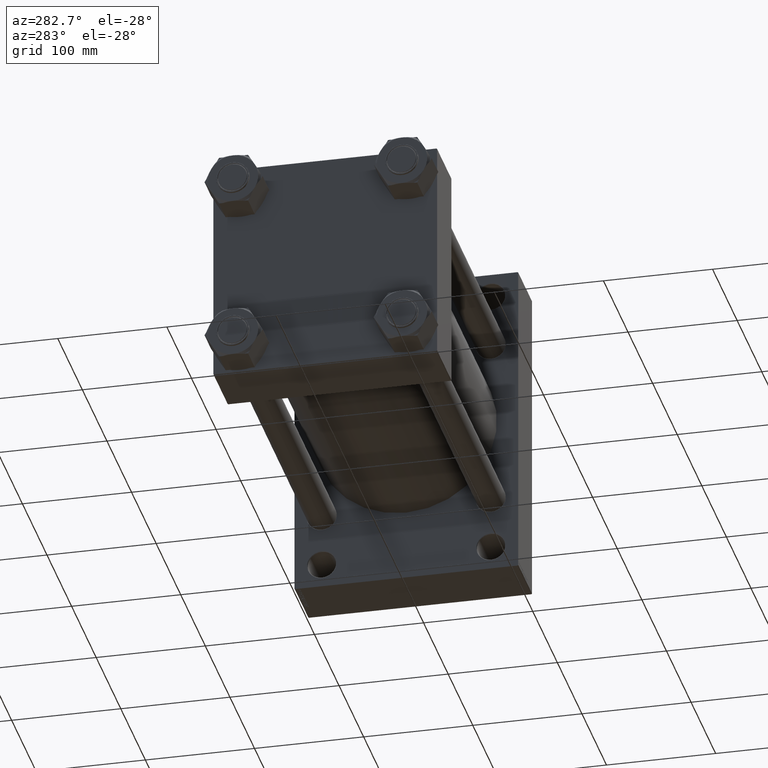
[diagram: clean part render]
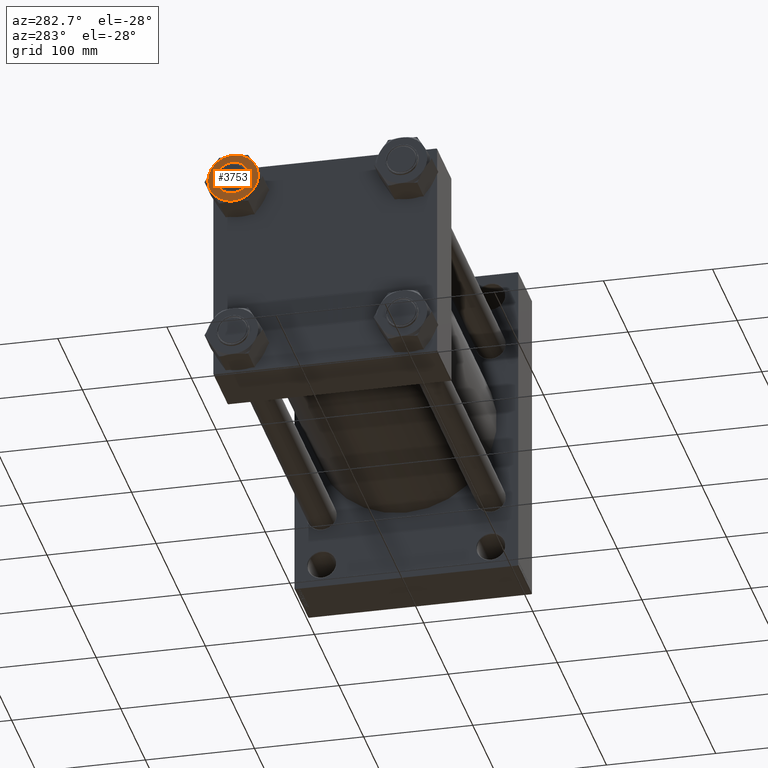
[diagram: same view with one face highlighted and labeled with its STEP entity id]
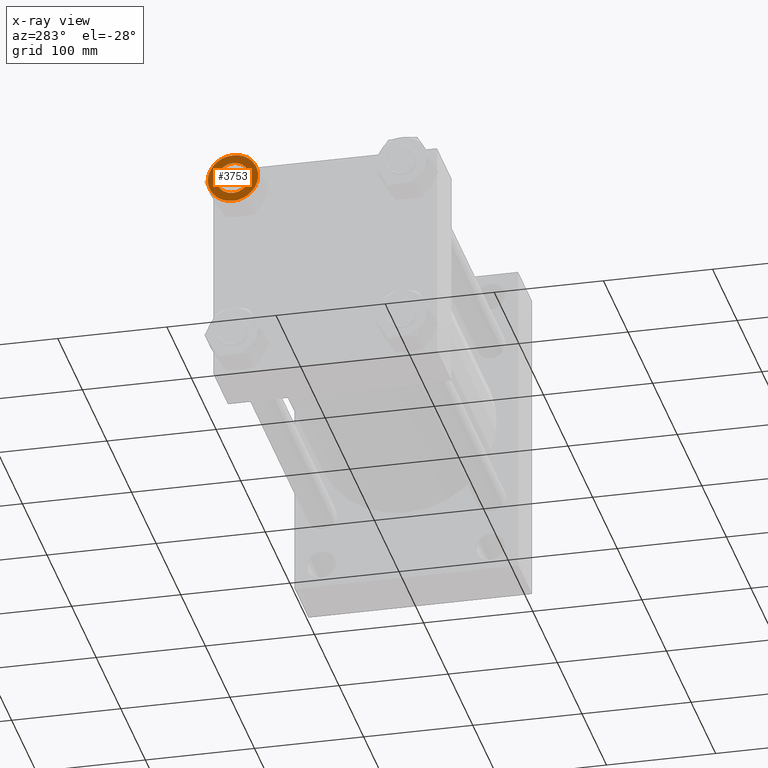
[diagram: x-ray of the same camera — body ghosted, the highlighted face saturated]
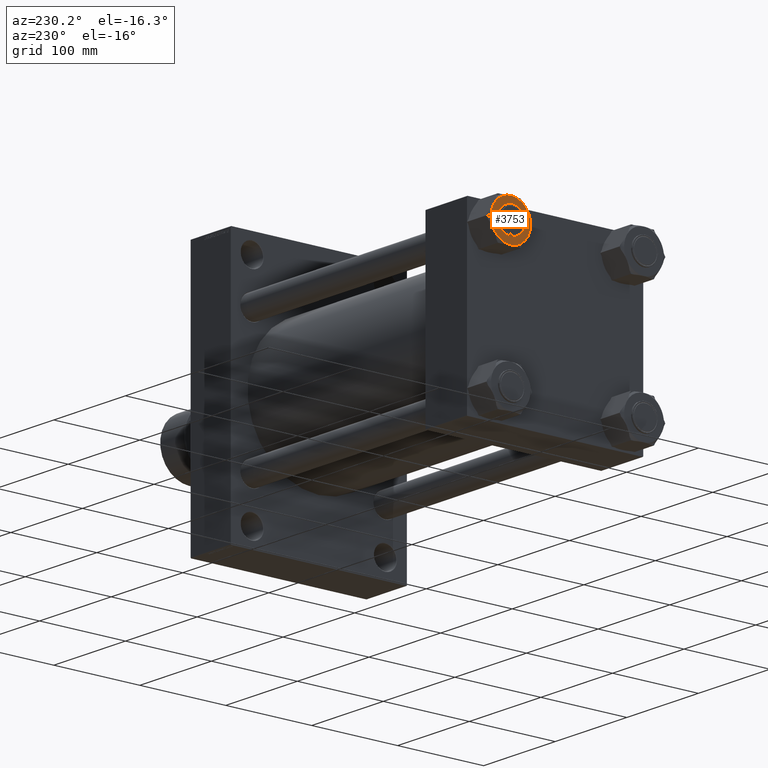
[diagram: same view with one face highlighted and labeled with its STEP entity id]
A machine part, auxiliary view. The second image highlights one B-rep face of the part: STEP entity #3753.
The next image is the same camera in x-ray: the body ghosted, the highlighted face saturated — about 0% of this face is hidden behind the body in this view.
A second angle (auxiliary view) of the same face is appended — the face is thin or edge-on in the first view.
In plain terms, the highlighted planar face has unit normal (1, 0, 0).
Its self-contained STEP definition (entity closure, byte-faithful):
#1250 = CIRCLE ( 'NONE', #31646, 23.05359624874176916 ) ;
#1761 = AXIS2_PLACEMENT_3D ( 'NONE', #28986, #2849, #10663 ) ;
#1841 = AXIS2_PLACEMENT_3D ( 'NONE', #34742, #28122, #16184 ) ;
#2054 = FACE_BOUND ( 'NONE', #33236, .T. ) ;
#2187 = DIRECTION ( 'NONE',  ( -1.000000000000000000, 0.000000000000000000, 0.000000000000000000 ) ) ;
#2632 = AXIS2_PLACEMENT_3D ( 'NONE', #27449, #16687, #42562 ) ;
#2849 = DIRECTION ( 'NONE',  ( 0.000000000000000000, -0.000000000000000000, -1.000000000000000000 ) ) ;
#3449 = DIRECTION ( 'NONE',  ( 0.000000000000000000, 0.000000000000000000, 1.000000000000000000 ) ) ;
#3753 = ADVANCED_FACE ( 'NONE', ( #2054, #16962 ), #46738, .F. ) ;
#3904 = DIRECTION ( 'NONE',  ( -1.000000000000000000, 0.000000000000000000, 0.000000000000000000 ) ) ;
#4742 = DIRECTION ( 'NONE',  ( -1.000000000000000000, 0.000000000000000000, 0.000000000000000000 ) ) ;
#5454 = EDGE_CURVE ( 'NONE', #30423, #34191, #8510, .T. ) ;
#6311 = DIRECTION ( 'NONE',  ( -1.000000000000000000, 0.000000000000000000, 0.000000000000000000 ) ) ;
#6545 = AXIS2_PLACEMENT_3D ( 'NONE', #9513, #13191, #2187 ) ;
#6760 = CARTESIAN_POINT ( 'NONE',  ( 0.000000000000000000, 23.05359624874177271, 0.000000000000000000 ) ) ;
#7984 = CARTESIAN_POINT ( 'NONE',  ( -19.96500000000001762, -11.52679812437087747, 0.000000000000000000 ) ) ;
#8510 = CIRCLE ( 'NONE', #20993, 15.00000000000000000 ) ;
#8918 = CARTESIAN_POINT ( 'NONE',  ( 15.00000000000000000, 1.836970198721029589E-15, 0.000000000000000000 ) ) ;
#9507 = ORIENTED_EDGE ( 'NONE', *, *, #31042, .F. ) ;
#9513 = CARTESIAN_POINT ( 'NONE',  ( 0.000000000000000000, 0.000000000000000000, 0.000000000000000000 ) ) ;
#10663 = DIRECTION ( 'NONE',  ( -1.000000000000000000, 0.000000000000000000, 0.000000000000000000 ) ) ;
#11355 = DIRECTION ( 'NONE',  ( 0.000000000000000000, -0.000000000000000000, -1.000000000000000000 ) ) ;
#11998 = CIRCLE ( 'NONE', #2632, 23.05359624874177271 ) ;
#12318 = CARTESIAN_POINT ( 'NONE',  ( 23.05359624874176916, 0.000000000000000000, 0.000000000000000000 ) ) ;
#12783 = CIRCLE ( 'NONE', #6545, 23.05359624874176916 ) ;
#13049 = EDGE_CURVE ( 'NONE', #32752, #31058, #11998, .T. ) ;
#13191 = DIRECTION ( 'NONE',  ( 0.000000000000000000, -0.000000000000000000, -1.000000000000000000 ) ) ;
#13292 = DIRECTION ( 'NONE',  ( 0.000000000000000000, 0.000000000000000000, -1.000000000000000000 ) ) ;
#13501 = EDGE_CURVE ( 'NONE', #40626, #28662, #12783, .T. ) ;
#13830 = VERTEX_POINT ( 'NONE', #17960 ) ;
#14789 = DIRECTION ( 'NONE',  ( -1.000000000000000000, 0.000000000000000000, 0.000000000000000000 ) ) ;
#15041 = CIRCLE ( 'NONE', #1761, 23.05359624874176916 ) ;
#16117 = CARTESIAN_POINT ( 'NONE',  ( 19.96500000000001407, -11.52679812437088813, 0.000000000000000000 ) ) ;
#16184 = DIRECTION ( 'NONE',  ( 1.000000000000000000, 0.000000000000000000, 0.000000000000000000 ) ) ;
#16297 = CIRCLE ( 'NONE', #38885, 23.05359624874176916 ) ;
#16687 = DIRECTION ( 'NONE',  ( 0.000000000000000000, 0.000000000000000000, 1.000000000000000000 ) ) ;
#16962 = FACE_OUTER_BOUND ( 'NONE', #26199, .T. ) ;
#17960 = CARTESIAN_POINT ( 'NONE',  ( 3.004629197474320035E-15, -23.05359624874177271, 0.000000000000000000 ) ) ;
#20993 = AXIS2_PLACEMENT_3D ( 'NONE', #24975, #3449, #39850 ) ;
#21778 = EDGE_CURVE ( 'NONE', #35716, #45891, #16297, .T. ) ;
#22558 = ORIENTED_EDGE ( 'NONE', *, *, #5454, .F. ) ;
#22874 = AXIS2_PLACEMENT_3D ( 'NONE', #34774, #38416, #4742 ) ;
#23346 = CARTESIAN_POINT ( 'NONE',  ( 0.000000000000000000, 0.000000000000000000, 0.000000000000000000 ) ) ;
#23474 = ORIENTED_EDGE ( 'NONE', *, *, #44440, .F. ) ;
#24975 = CARTESIAN_POINT ( 'NONE',  ( 0.000000000000000000, 0.000000000000000000, 0.000000000000000000 ) ) ;
#25007 = AXIS2_PLACEMENT_3D ( 'NONE', #35858, #44396, #6311 ) ;
#25292 = EDGE_CURVE ( 'NONE', #28662, #31058, #46799, .T. ) ;
#26186 = CARTESIAN_POINT ( 'NONE',  ( -19.96500000000001407, 11.52679812437088813, 0.000000000000000000 ) ) ;
#26199 = EDGE_LOOP ( 'NONE', ( #39493, #41092, #23474, #37491, #41619, #9507, #28424 ) ) ;
#27449 = CARTESIAN_POINT ( 'NONE',  ( 0.000000000000000000, 0.000000000000000000, 0.000000000000000000 ) ) ;
#28122 = DIRECTION ( 'NONE',  ( 0.000000000000000000, 0.000000000000000000, 1.000000000000000000 ) ) ;
#28195 = DIRECTION ( 'NONE',  ( -1.000000000000000000, 0.000000000000000000, -0.000000000000000000 ) ) ;
#28424 = ORIENTED_EDGE ( 'NONE', *, *, #13049, .T. ) ;
#28662 = VERTEX_POINT ( 'NONE', #26186 ) ;
#28986 = CARTESIAN_POINT ( 'NONE',  ( 0.000000000000000000, 0.000000000000000000, 0.000000000000000000 ) ) ;
#29797 = CARTESIAN_POINT ( 'NONE',  ( 19.96500000000001762, 11.52679812437088458, 0.000000000000000000 ) ) ;
#30423 = VERTEX_POINT ( 'NONE', #44223 ) ;
#31042 = EDGE_CURVE ( 'NONE', #32752, #35716, #15041, .T. ) ;
#31058 = VERTEX_POINT ( 'NONE', #6760 ) ;
#31646 = AXIS2_PLACEMENT_3D ( 'NONE', #44452, #44203, #3904 ) ;
#32752 = VERTEX_POINT ( 'NONE', #29797 ) ;
#33236 = EDGE_LOOP ( 'NONE', ( #22558, #35976 ) ) ;
#34191 = VERTEX_POINT ( 'NONE', #8918 ) ;
#34742 = CARTESIAN_POINT ( 'NONE',  ( 0.000000000000000000, 0.000000000000000000, 0.000000000000000000 ) ) ;
#34774 = CARTESIAN_POINT ( 'NONE',  ( 0.000000000000000000, 0.000000000000000000, 0.000000000000000000 ) ) ;
#35716 = VERTEX_POINT ( 'NONE', #12318 ) ;
#35858 = CARTESIAN_POINT ( 'NONE',  ( 0.000000000000000000, 0.000000000000000000, 0.000000000000000000 ) ) ;
#35976 = ORIENTED_EDGE ( 'NONE', *, *, #41888, .F. ) ;
#36515 = CARTESIAN_POINT ( 'NONE',  ( 0.000000000000000000, 0.000000000000000000, 0.000000000000000000 ) ) ;
#37491 = ORIENTED_EDGE ( 'NONE', *, *, #41238, .F. ) ;
#38416 = DIRECTION ( 'NONE',  ( 0.000000000000000000, -0.000000000000000000, -1.000000000000000000 ) ) ;
#38885 = AXIS2_PLACEMENT_3D ( 'NONE', #36515, #11355, #14789 ) ;
#39493 = ORIENTED_EDGE ( 'NONE', *, *, #25292, .F. ) ;
#39850 = DIRECTION ( 'NONE',  ( 1.000000000000000000, 0.000000000000000000, 0.000000000000000000 ) ) ;
#40626 = VERTEX_POINT ( 'NONE', #7984 ) ;
#41092 = ORIENTED_EDGE ( 'NONE', *, *, #13501, .F. ) ;
#41238 = EDGE_CURVE ( 'NONE', #45891, #13830, #1250, .T. ) ;
#41619 = ORIENTED_EDGE ( 'NONE', *, *, #21778, .F. ) ;
#41888 = EDGE_CURVE ( 'NONE', #34191, #30423, #45535, .T. ) ;
#42562 = DIRECTION ( 'NONE',  ( 1.000000000000000000, 0.000000000000000000, 0.000000000000000000 ) ) ;
#43908 = CIRCLE ( 'NONE', #22874, 23.05359624874176916 ) ;
#44203 = DIRECTION ( 'NONE',  ( 0.000000000000000000, -0.000000000000000000, -1.000000000000000000 ) ) ;
#44223 = CARTESIAN_POINT ( 'NONE',  ( -15.00000000000000000, 0.000000000000000000, 0.000000000000000000 ) ) ;
#44396 = DIRECTION ( 'NONE',  ( 0.000000000000000000, -0.000000000000000000, -1.000000000000000000 ) ) ;
#44440 = EDGE_CURVE ( 'NONE', #13830, #40626, #43908, .T. ) ;
#44452 = CARTESIAN_POINT ( 'NONE',  ( 0.000000000000000000, 0.000000000000000000, 0.000000000000000000 ) ) ;
#45535 = CIRCLE ( 'NONE', #1841, 15.00000000000000000 ) ;
#45891 = VERTEX_POINT ( 'NONE', #16117 ) ;
#46738 = PLANE ( 'NONE',  #48215 ) ;
#46799 = CIRCLE ( 'NONE', #25007, 23.05359624874176916 ) ;
#48215 = AXIS2_PLACEMENT_3D ( 'NONE', #23346, #13292, #28195 ) ;